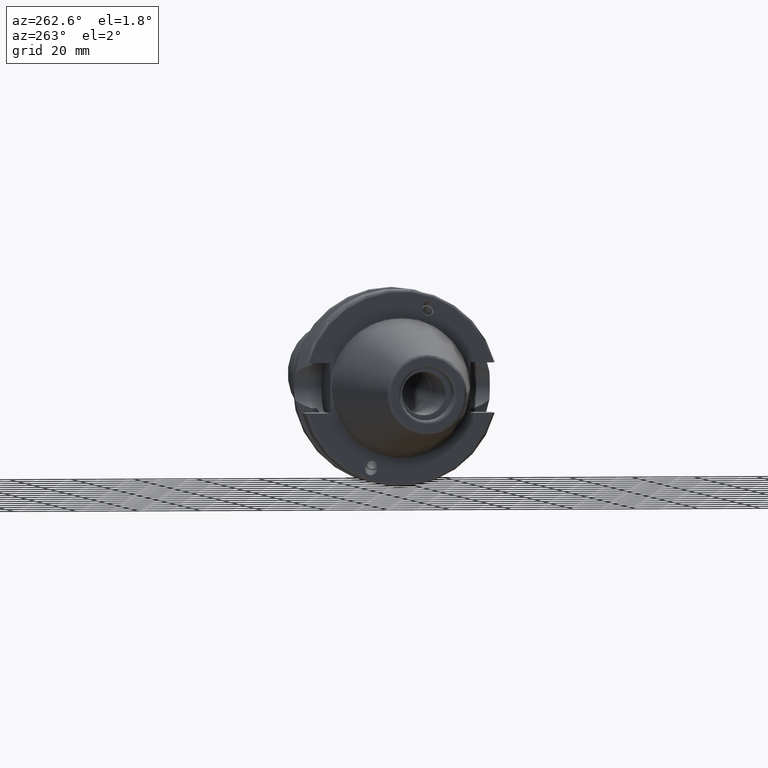
[diagram: clean part render]
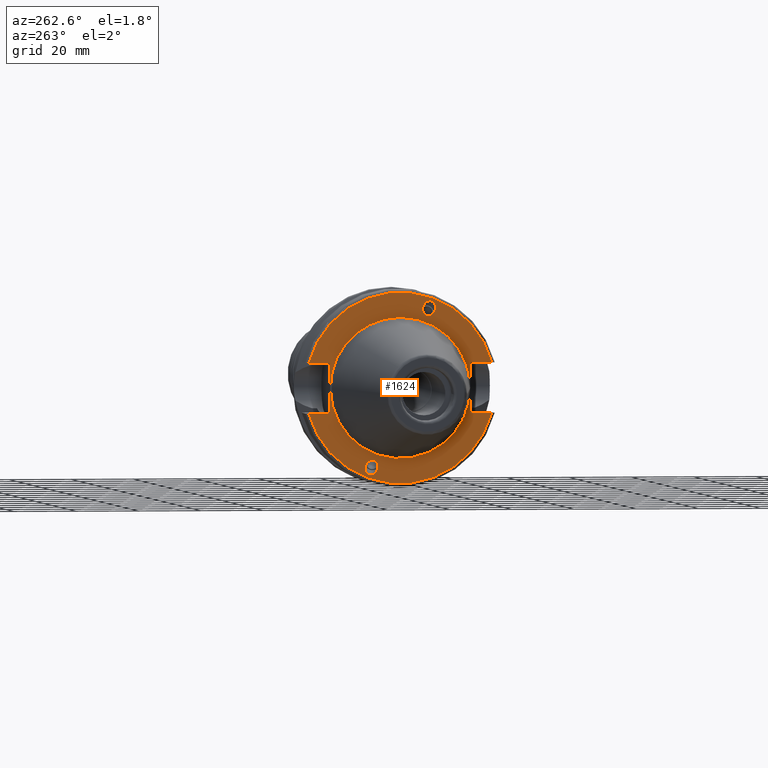
[diagram: same view with one face highlighted and labeled with its STEP entity id]
A machine part, auxiliary view. The second image highlights one B-rep face of the part: STEP entity #1624.
In plain terms, the highlighted planar face has unit normal (-1, 0, 0).
Its self-contained STEP definition (entity closure, byte-faithful):
#27=ELLIPSE('',#1773,2.44154917752291,2.);
#36=ELLIPSE('',#1801,2.44154917752291,2.);
#55=PLANE('',#1878);
#107=FACE_BOUND('',#308,.T.);
#108=FACE_BOUND('',#309,.T.);
#109=FACE_BOUND('',#310,.T.);
#210=FACE_OUTER_BOUND('',#307,.T.);
#307=EDGE_LOOP('',(#1474,#1475,#1476,#1477,#1478,#1479,#1480,#1481));
#308=EDGE_LOOP('',(#1482));
#309=EDGE_LOOP('',(#1483));
#310=EDGE_LOOP('',(#1484,#1485));
#356=LINE('',#2953,#423);
#360=LINE('',#2961,#427);
#363=LINE('',#2981,#430);
#374=LINE('',#3083,#441);
#377=LINE('',#3104,#444);
#379=LINE('',#3107,#446);
#423=VECTOR('',#2248,10.);
#427=VECTOR('',#2254,10.);
#430=VECTOR('',#2259,10.);
#441=VECTOR('',#2316,10.);
#444=VECTOR('',#2321,10.);
#446=VECTOR('',#2325,10.);
#554=CIRCLE('',#1831,30.5);
#583=CIRCLE('',#1876,22.5);
#584=CIRCLE('',#1877,22.5);
#585=CIRCLE('',#1879,30.5);
#671=VERTEX_POINT('',#2773);
#691=VERTEX_POINT('',#2864);
#710=VERTEX_POINT('',#2941);
#711=VERTEX_POINT('',#2952);
#713=VERTEX_POINT('',#2958);
#714=VERTEX_POINT('',#2960);
#730=VERTEX_POINT('',#3043);
#737=VERTEX_POINT('',#3080);
#738=VERTEX_POINT('',#3082);
#742=VERTEX_POINT('',#3103);
#766=VERTEX_POINT('',#3175);
#767=VERTEX_POINT('',#3177);
#879=EDGE_CURVE('',#671,#671,#27,.T.);
#907=EDGE_CURVE('',#691,#691,#36,.T.);
#929=EDGE_CURVE('',#711,#710,#356,.T.);
#933=EDGE_CURVE('',#714,#713,#360,.T.);
#938=EDGE_CURVE('',#713,#711,#363,.T.);
#959=EDGE_CURVE('',#714,#730,#554,.T.);
#969=EDGE_CURVE('',#738,#737,#374,.T.);
#974=EDGE_CURVE('',#742,#730,#377,.T.);
#976=EDGE_CURVE('',#737,#742,#379,.T.);
#1010=EDGE_CURVE('',#767,#766,#583,.T.);
#1011=EDGE_CURVE('',#766,#767,#584,.T.);
#1012=EDGE_CURVE('',#738,#710,#585,.T.);
#1474=ORIENTED_EDGE('',*,*,#929,.T.);
#1475=ORIENTED_EDGE('',*,*,#1012,.F.);
#1476=ORIENTED_EDGE('',*,*,#969,.T.);
#1477=ORIENTED_EDGE('',*,*,#976,.T.);
#1478=ORIENTED_EDGE('',*,*,#974,.T.);
#1479=ORIENTED_EDGE('',*,*,#959,.F.);
#1480=ORIENTED_EDGE('',*,*,#933,.T.);
#1481=ORIENTED_EDGE('',*,*,#938,.T.);
#1482=ORIENTED_EDGE('',*,*,#879,.T.);
#1483=ORIENTED_EDGE('',*,*,#907,.T.);
#1484=ORIENTED_EDGE('',*,*,#1010,.T.);
#1485=ORIENTED_EDGE('',*,*,#1011,.T.);
#1624=ADVANCED_FACE('',(#210,#107,#108,#109),#55,.T.);
#1773=AXIS2_PLACEMENT_3D('',#2775,#2158,#2159);
#1801=AXIS2_PLACEMENT_3D('',#2866,#2221,#2222);
#1831=AXIS2_PLACEMENT_3D('',#3044,#2303,#2304);
#1876=AXIS2_PLACEMENT_3D('',#3178,#2410,#2411);
#1877=AXIS2_PLACEMENT_3D('',#3179,#2412,#2413);
#1878=AXIS2_PLACEMENT_3D('',#3180,#2414,#2415);
#1879=AXIS2_PLACEMENT_3D('',#3181,#2416,#2417);
#2158=DIRECTION('center_axis',(1.,0.,0.));
#2159=DIRECTION('ref_axis',(5.68400912649004E-17,-0.342020143325671,0.939692620785908));
#2221=DIRECTION('center_axis',(1.,0.,0.));
#2222=DIRECTION('ref_axis',(5.68400912649004E-17,0.342020143325671,-0.939692620785908));
#2248=DIRECTION('',(0.,-1.,0.));
#2254=DIRECTION('',(0.,1.,0.));
#2259=DIRECTION('',(0.,0.,1.));
#2303=DIRECTION('center_axis',(1.,0.,0.));
#2304=DIRECTION('ref_axis',(0.,0.,-1.));
#2316=DIRECTION('',(0.,-1.,0.));
#2321=DIRECTION('',(0.,1.,0.));
#2325=DIRECTION('',(0.,0.,-1.));
#2410=DIRECTION('center_axis',(1.,0.,0.));
#2411=DIRECTION('ref_axis',(0.,0.,-1.));
#2412=DIRECTION('center_axis',(1.,0.,0.));
#2413=DIRECTION('ref_axis',(0.,0.,-1.));
#2414=DIRECTION('center_axis',(-1.,0.,0.));
#2415=DIRECTION('ref_axis',(0.,0.,1.));
#2416=DIRECTION('center_axis',(1.,0.,0.));
#2417=DIRECTION('ref_axis',(0.,0.,-1.));
#2773=CARTESIAN_POINT('',(1.99999999999999,-8.39948487015999,23.0773950158154));
#2775=CARTESIAN_POINT('Origin',(1.99999999999999,-9.23454386979305,25.3717007612195));
#2864=CARTESIAN_POINT('',(1.99999999999999,8.39948487015999,-23.0773950158154));
#2866=CARTESIAN_POINT('Origin',(1.99999999999999,9.23454386979305,-25.3717007612195));
#2941=CARTESIAN_POINT('',(1.99999999999999,-29.4184890842477,8.05));
#2952=CARTESIAN_POINT('',(1.99999999999999,-22.6,8.05));
#2953=CARTESIAN_POINT('',(1.99999999999999,3.95,8.05));
#2958=CARTESIAN_POINT('',(1.99999999999999,-22.6,-8.05));
#2960=CARTESIAN_POINT('',(1.99999999999999,-29.4184890842477,-8.05));
#2961=CARTESIAN_POINT('',(1.99999999999999,3.95,-8.05));
#2981=CARTESIAN_POINT('',(1.99999999999999,-22.6,0.));
#3043=CARTESIAN_POINT('',(1.99999999999999,29.4184890842477,-8.05));
#3044=CARTESIAN_POINT('Origin',(1.99999999999999,0.,0.));
#3080=CARTESIAN_POINT('',(1.99999999999999,22.6,8.05));
#3082=CARTESIAN_POINT('',(1.99999999999999,29.4184890842477,8.05));
#3083=CARTESIAN_POINT('',(1.99999999999999,26.55,8.05));
#3103=CARTESIAN_POINT('',(1.99999999999999,22.6,-8.05));
#3104=CARTESIAN_POINT('',(1.99999999999999,26.55,-8.05));
#3107=CARTESIAN_POINT('',(1.99999999999999,22.6,0.));
#3175=CARTESIAN_POINT('',(2.,-2.75545529808154E-15,22.5));
#3177=CARTESIAN_POINT('',(2.,22.5,0.));
#3178=CARTESIAN_POINT('Origin',(2.,0.,0.));
#3179=CARTESIAN_POINT('Origin',(2.,0.,0.));
#3180=CARTESIAN_POINT('Origin',(1.99999999999999,30.5,0.));
#3181=CARTESIAN_POINT('Origin',(1.99999999999999,0.,0.));